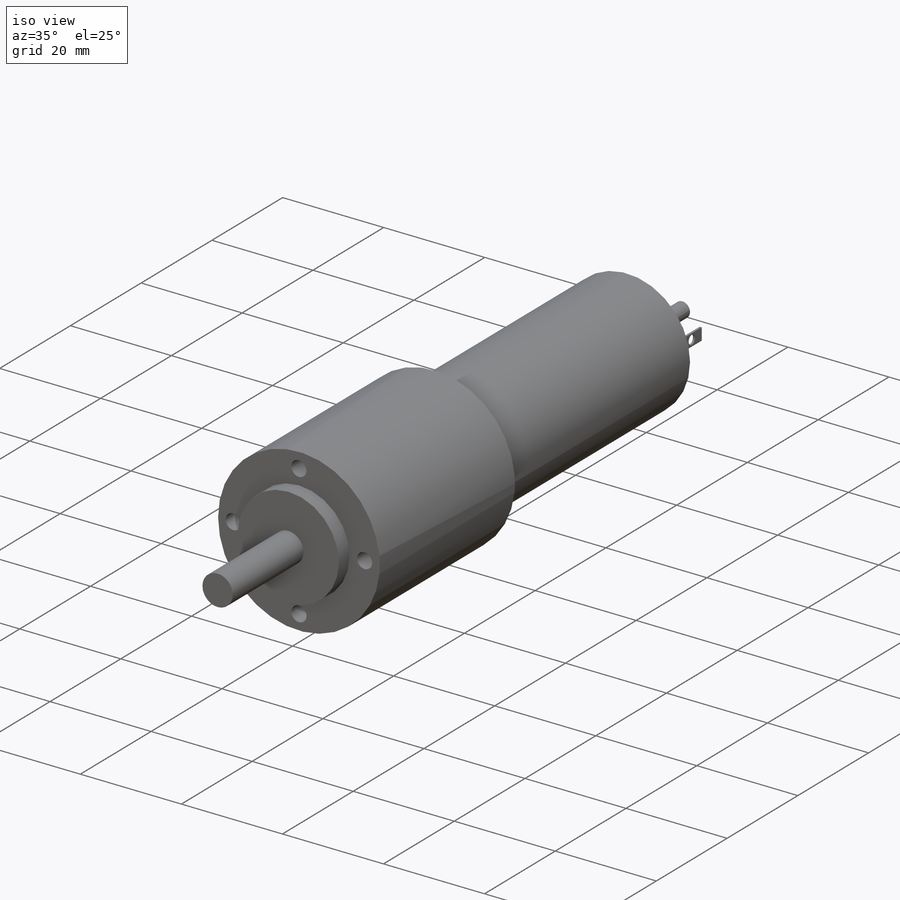
[diagram: iso view]
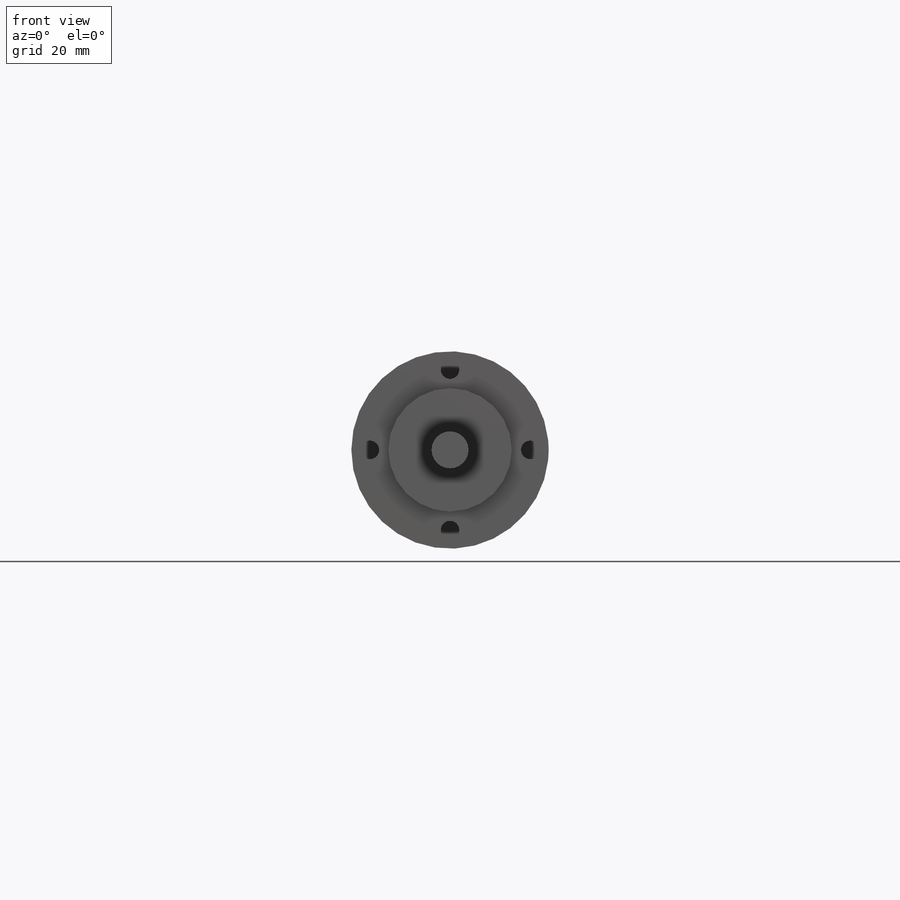
[diagram: front view]
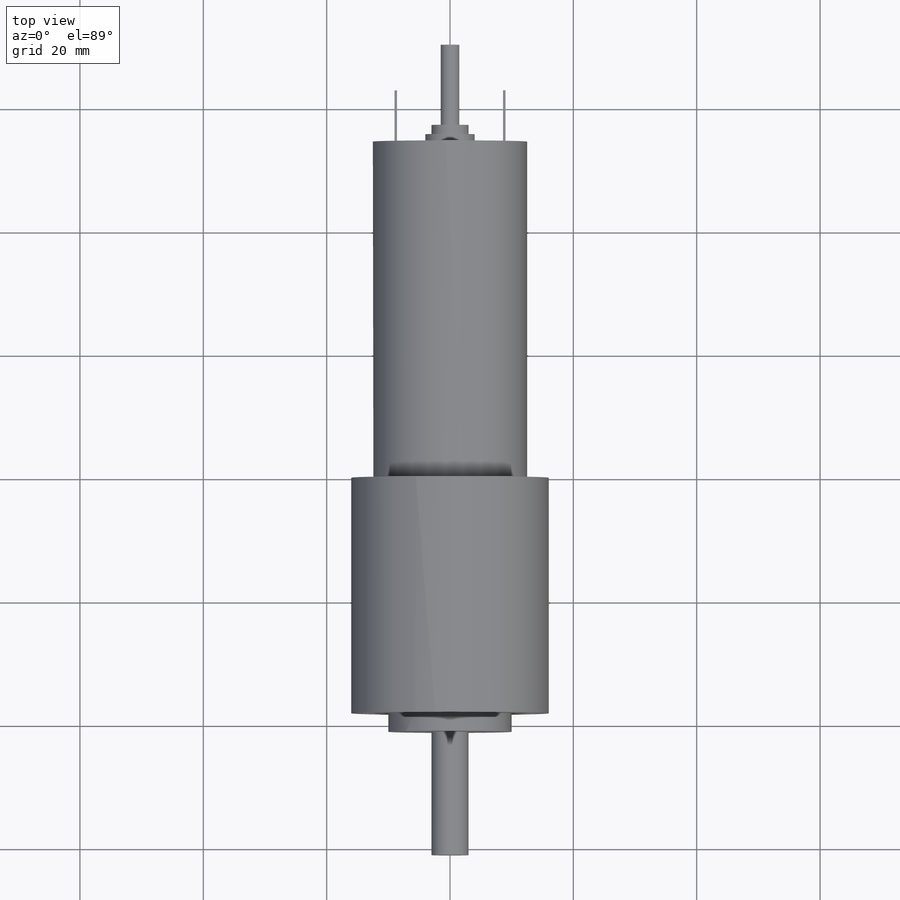
[diagram: top view]
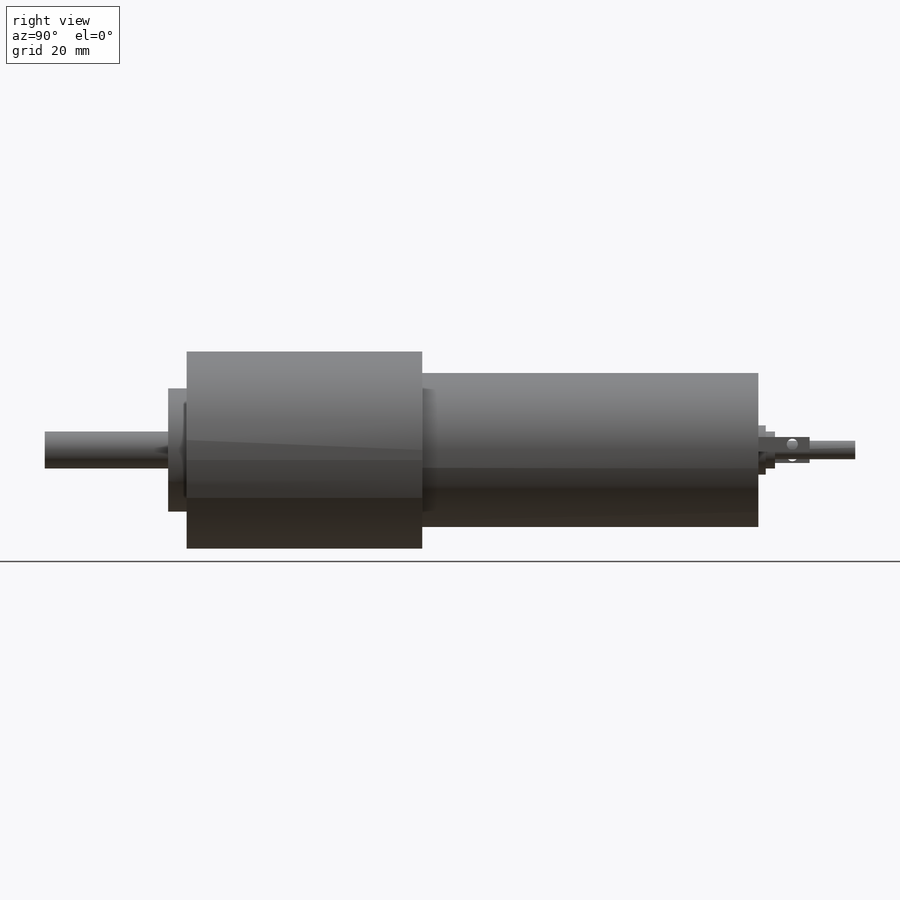
[diagram: right view]
SOLIDWORKS PART (.sldprt)
format: sldprt  version: not decoded by parser v0  size: 304,640 bytes
history: native  units: mm
features: sketch x11, extrude x8, pattern_circular x4, plane x3, cut_extrude x3, material x1 (+13 scaffold rows collapsed)
feature tree (43):
  scaffold x13  (default folders/planes/origin — collapsed)
  material  "Matériau <non spécifié>"
  plane  "Plan de face"
  plane  "Plan de dessus"
  plane  "Plan de droite"
  sketch  "Esquisse1"  dims[D1=~35.393654mm]
  extrude  "Boss.-Extru.1"  Depth=38.2mm
  sketch  "Esquisse4"  dims[D1=~8.914502mm]
  extrude  "Boss.-Extru.2"  Depth=54.5mm
  sketch  "Esquisse5"  dims[D1=~9.383678mm]
  extrude  "Boss.-Extru.3"  Depth=3mm
  sketch  "Esquisse6"  dims[D1=~6.125163mm]
  extrude  "Boss.-Extru.4"  Depth=17mm
  sketch  "Esquisse8"  dims[D1=~8.312006mm]
  extrude  "Boss.-Extru.5"  Depth=1.2mm
  sketch  "Esquisse9"  dims[D1=2.3004mm]
  extrude  "Boss.-Extru.6"  Depth=1.5mm
  sketch  "Esquisse10"  dims[D1=~1.582584mm]
  extrude  "Boss.-Extru.7"  Depth=13mm
  sketch  "Esquisse11"  dims[D1=0.9mm D2=0.4mm D3=8.8mm D4=2.4mm]
  extrude  "Boss.-Extru.8"  Depth=8.3mm
  sketch  "Esquisse14"  dims[D1=1.8mm]
  cut_extrude  "Enlèv. mat.-Extru.2"  Depth=1mm
  pattern_circular  "Répétition circulaire3"  Count=2 Angle=180deg
  pattern_circular  "Répétition circulaire4"  Count=2 Angle=180deg
  sketch  "Esquisse15"  dims[c1.D2=~1.518333mm c1.D1=~38.891754mm c2.D1=90.0deg c3.D1=~12.951347mm c4.D1=61.0deg]
  cut_extrude  "Enlèv. mat.-Extru.3"  Depth=3mm
  pattern_circular  "Répétition circulaire5"  Count=2 Angle=180deg
  sketch  "Esquisse16"  dims[D1=13.0mm]
  cut_extrude  "Enlèv. mat.-Extru.4"  Depth=4mm
  pattern_circular  "Répétition circulaire6"  Count=4 Angle=90deg
decode coverage: 26 of 26 modeling features carry decoded parameters
note: ~ marks probable driven/reference dimensions
note: suppression state not decoded; provenance and decode notes live in map.json
